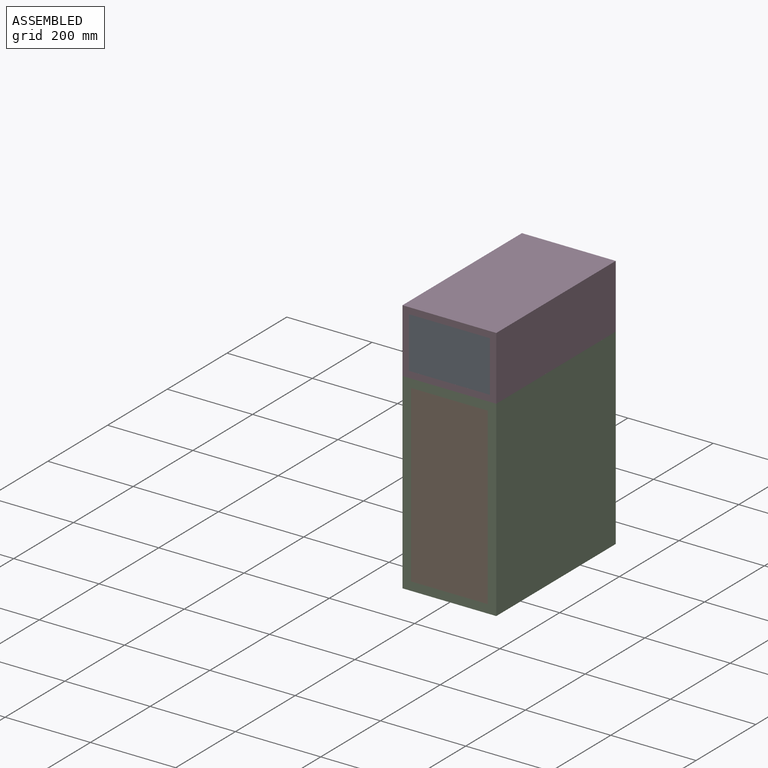
[diagram: assembled view]
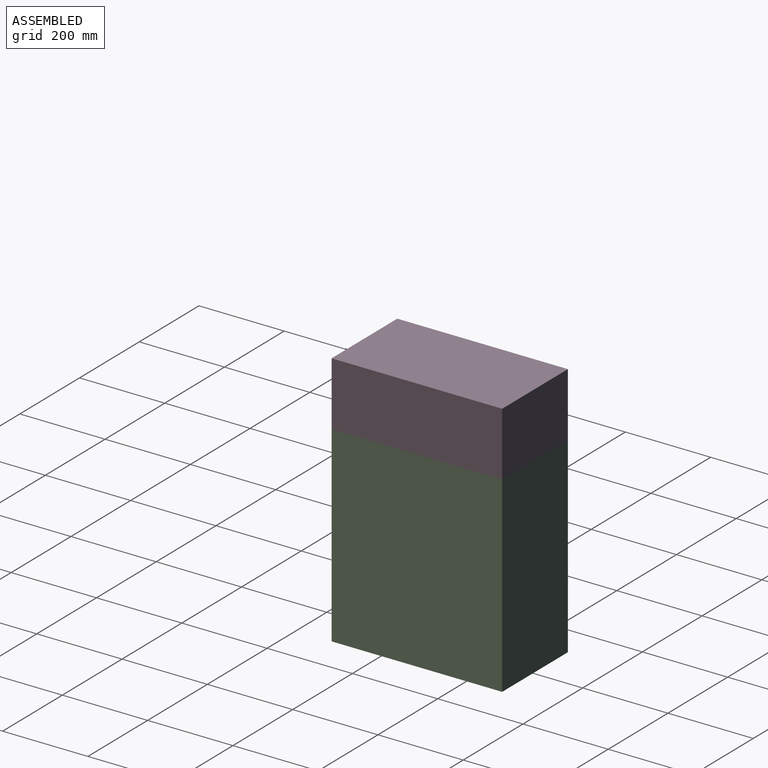
[diagram: assembled view, second angle]
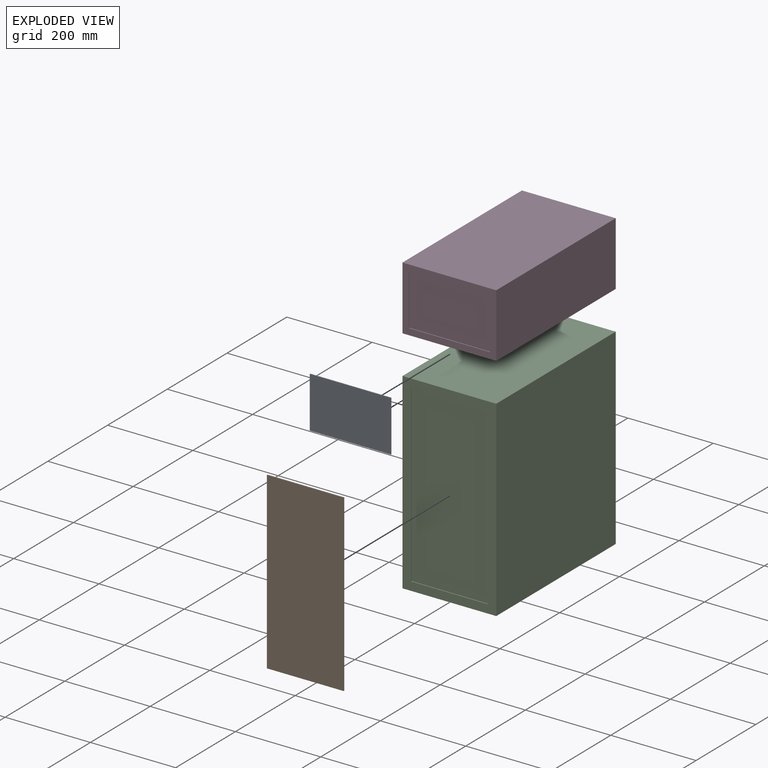
[diagram: exploded view]
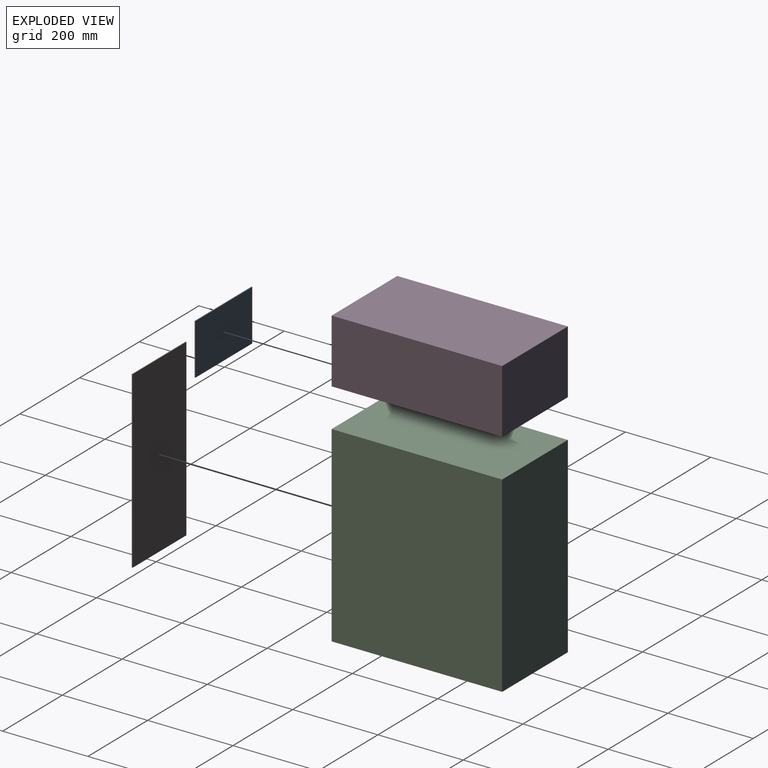
[diagram: exploded view, second angle]
ASSEMBLY  parts=4 mates=5
PART A: 6 faces, bbox 190x2x120 mm
  f0: plane 190x2mm, normal (0,0,-1), area 380mm2, adj f1,f3,f4,f5
  f1: plane 120x2mm, normal (1,0,0), area 240mm2, adj f0,f2,f4,f5
  f2: plane 190x2mm, normal (0,0,1), area 380mm2, adj f1,f3,f4,f5
  f3: plane 120x2mm, normal (-1,0,0), area 240mm2, adj f0,f2,f4,f5
  f4: plane 190x120mm, normal (0,-1,0), area 22800mm2, adj f0,f1,f2,f3
  f5: plane 190x120mm, normal (0,1,0), area 22800mm2, adj f0,f1,f2,f3
PART B: 6 faces, bbox 180x2x410 mm
  f0: plane 180x2mm, normal (0,0,-1), area 360mm2, adj f1,f3,f4,f5
  f1: plane 410x2mm, normal (1,0,0), area 820mm2, adj f0,f2,f4,f5
  f2: plane 180x2mm, normal (0,0,1), area 360mm2, adj f1,f3,f4,f5
  f3: plane 410x2mm, normal (-1,0,0), area 820mm2, adj f0,f2,f4,f5
  f4: plane 410x180mm, normal (0,-1,0), area 73800mm2, adj f0,f1,f2,f3
  f5: plane 410x180mm, normal (0,1,0), area 73800mm2, adj f0,f1,f2,f3
PART C: 11 faces, bbox 220x400x450 mm
  f0: plane 450x220mm, normal (0,-1,0), area 25200mm2, adj f1,f3,f4,f5,f6,f7,f8,f9
  f1: plane 450x400mm, normal (1,0,0), area 180000mm2, adj f0,f2,f4,f5
  f2: plane 450x220mm, normal (0,1,0), area 99000mm2, adj f1,f3,f4,f5
  f3: plane 450x400mm, normal (-1,0,0), area 180000mm2, adj f0,f2,f4,f5
  f4: plane 400x220mm, normal (0,0,1), area 88000mm2, adj f0,f1,f2,f3
  f5: plane 400x220mm, normal (0,0,-1), area 88000mm2, adj f0,f1,f2,f3
  f6: plane 180x2mm, normal (0,0,1), area 360mm2, adj f0,f7,f9,f10
  f7: plane 410x2mm, normal (-1,0,0), area 820mm2, adj f0,f6,f8,f10
  f8: plane 180x2mm, normal (0,0,-1), area 360mm2, adj f0,f7,f9,f10
  f9: plane 410x2mm, normal (1,0,0), area 820mm2, adj f0,f6,f8,f10
  f10: plane 410x180mm, normal (0,-1,0), area 73800mm2, adj f6,f7,f8,f9
PART D: 11 faces, bbox 220x400x150 mm
  f0: plane 220x150mm, normal (0,-1,0), area 10200mm2, adj f1,f3,f4,f5,f6,f7,f8,f9
  f1: plane 400x150mm, normal (1,0,0), area 60000mm2, adj f0,f2,f4,f5
  f2: plane 220x150mm, normal (0,1,0), area 33000mm2, adj f1,f3,f4,f5
  f3: plane 400x150mm, normal (-1,0,0), area 60000mm2, adj f0,f2,f4,f5
  f4: plane 400x220mm, normal (0,0,1), area 88000mm2, adj f0,f1,f2,f3
  f5: plane 400x220mm, normal (0,0,-1), area 88000mm2, adj f0,f1,f2,f3
  f6: plane 190x2mm, normal (0,0,1), area 380mm2, adj f0,f7,f9,f10
  f7: plane 120x2mm, normal (-1,0,0), area 240mm2, adj f0,f6,f8,f10
  f8: plane 190x2mm, normal (0,0,-1), area 380mm2, adj f0,f7,f9,f10
  f9: plane 120x2mm, normal (1,0,0), area 240mm2, adj f0,f6,f8,f10
  f10: plane 190x120mm, normal (0,-1,0), area 22800mm2, adj f6,f7,f8,f9
PLACE A t=(-986.79,-300.34,402.57)mm
PLACE B t=(-986.79,-300.34,102.57)mm
PLACE C t=(-986.79,-102.34,-122.43)mm
PLACE D t=(-996.3,-102.34,327.57)mm
MATE planar C.f1 <-> D.f1  axis (1,0,0) through (-876.79,-102.34,102.57)mm
MATE planar B.f2 <-> C.f8  axis (0,0,1) through (-986.79,-301.34,307.57)mm
MATE planar C.f10 <-> B.f5  axis (0,-1,0) through (-986.79,-300.34,102.57)mm
MATE planar C.f4 <-> D.f5  axis (0,0,1) through (-986.79,-102.34,327.57)mm
MATE planar D.f10 <-> A.f5  axis (0,-1,0) through (-986.79,-300.34,402.57)mm
